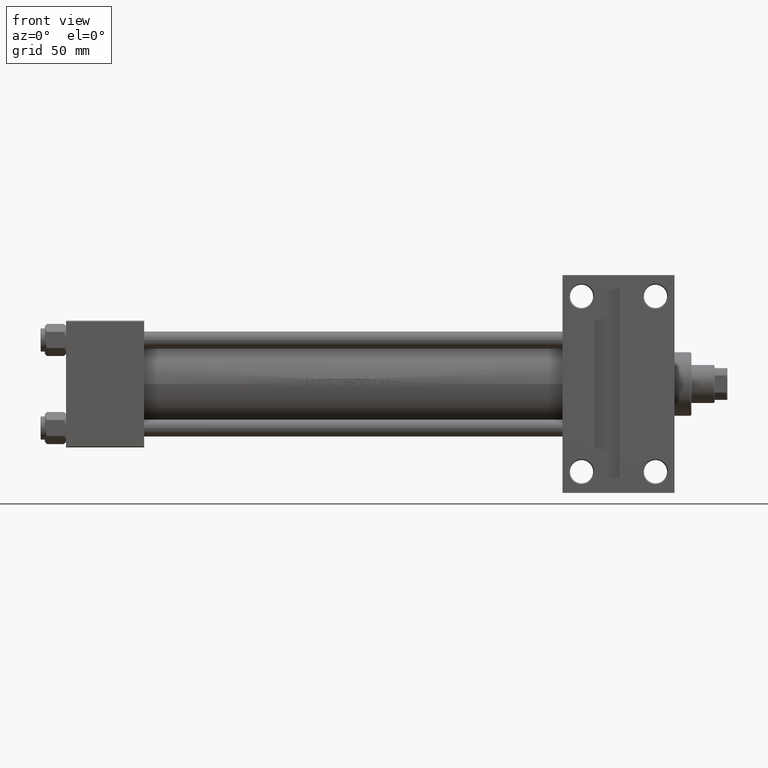
[diagram: clean part render]
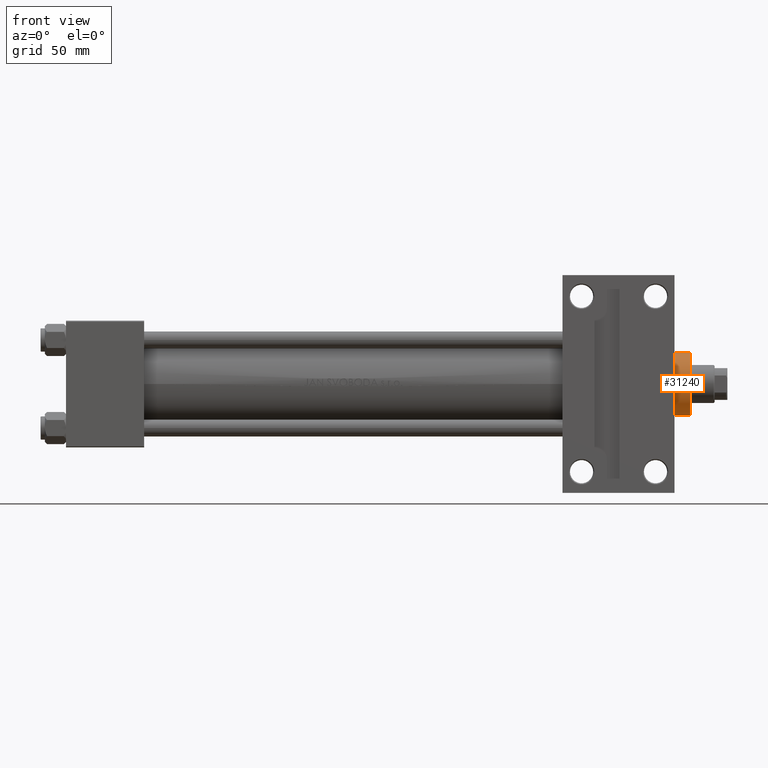
[diagram: same view with one face highlighted and labeled with its STEP entity id]
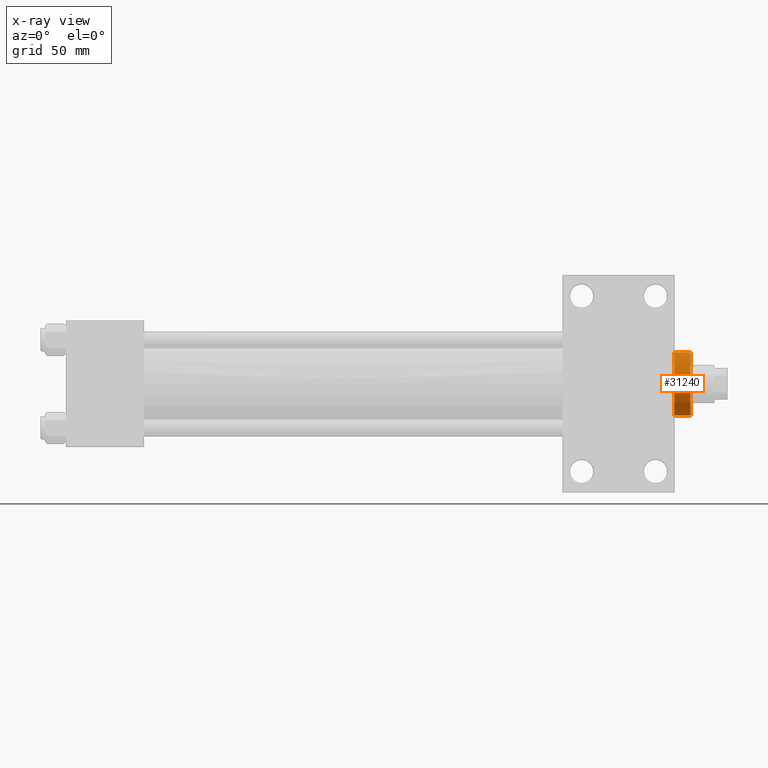
[diagram: x-ray of the same camera — body ghosted, the highlighted face saturated]
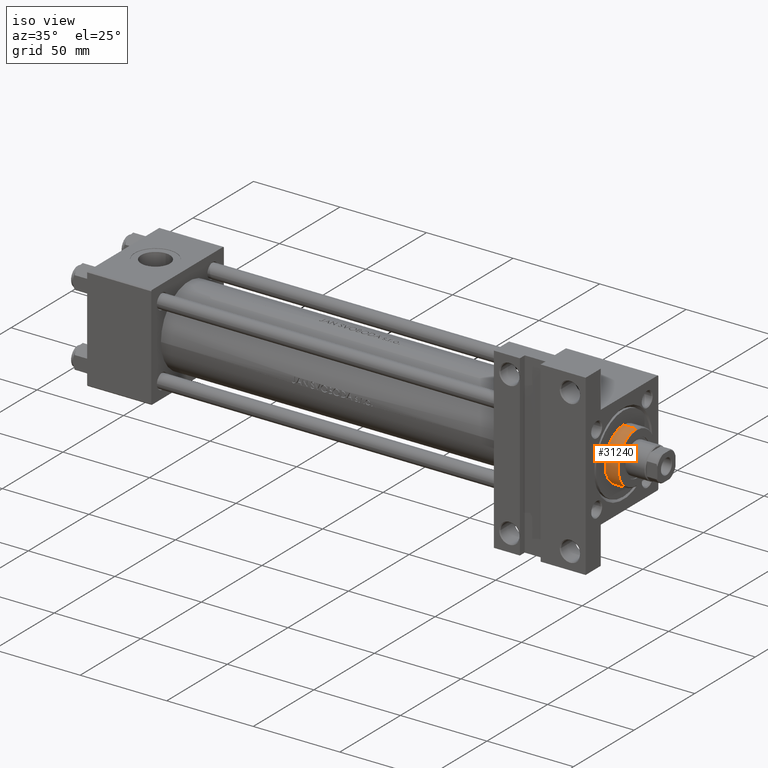
[diagram: same view with one face highlighted and labeled with its STEP entity id]
A machine part, front view. The second image highlights one B-rep face of the part: STEP entity #31240.
The next image is the same camera in x-ray: the body ghosted, the highlighted face saturated — about 0% of this face is hidden behind the body in this view.
A second angle (iso view) of the same face is appended — the face is thin or edge-on in the first view.
In plain terms, the highlighted cylindrical surface (edge-blend (fillet) strip) has radius 15 mm, axis along (-1, 0, 0).
Its self-contained STEP definition (entity closure, byte-faithful):
#4331 = EDGE_CURVE ( 'NONE', #47570, #11653, #43098, .T. ) ;
#4762 = AXIS2_PLACEMENT_3D ( 'NONE', #37168, #37401, #18897 ) ;
#5439 = ORIENTED_EDGE ( 'NONE', *, *, #33550, .T. ) ;
#8003 = VERTEX_POINT ( 'NONE', #8122 ) ;
#8122 = CARTESIAN_POINT ( 'NONE',  ( 15.00000000000000000, 1.836970198721029589E-15, 36.20000000000000284 ) ) ;
#8483 = FACE_OUTER_BOUND ( 'NONE', #44065, .T. ) ;
#9390 = ORIENTED_EDGE ( 'NONE', *, *, #13629, .F. ) ;
#10427 = DIRECTION ( 'NONE',  ( 1.000000000000000000, 0.000000000000000000, 0.000000000000000000 ) ) ;
#11653 = VERTEX_POINT ( 'NONE', #28228 ) ;
#13629 = EDGE_CURVE ( 'NONE', #45400, #11653, #47721, .T. ) ;
#13968 = DIRECTION ( 'NONE',  ( -0.000000000000000000, -0.000000000000000000, -1.000000000000000000 ) ) ;
#14129 = DIRECTION ( 'NONE',  ( 0.000000000000000000, 0.000000000000000000, 1.000000000000000000 ) ) ;
#15340 = VECTOR ( 'NONE', #13968, 1000.000000000000000 ) ;
#15587 = ORIENTED_EDGE ( 'NONE', *, *, #33414, .T. ) ;
#15876 = DIRECTION ( 'NONE',  ( -1.000000000000000000, 0.000000000000000000, 0.000000000000000000 ) ) ;
#16597 = CARTESIAN_POINT ( 'NONE',  ( 0.000000000000000000, 0.000000000000000000, 36.69999999999999574 ) ) ;
#18897 = DIRECTION ( 'NONE',  ( 1.000000000000000000, 0.000000000000000000, 0.000000000000000000 ) ) ;
#20286 = CYLINDRICAL_SURFACE ( 'NONE', #20444, 15.00000000000000000 ) ;
#20444 = AXIS2_PLACEMENT_3D ( 'NONE', #16597, #26999, #15876 ) ;
#26999 = DIRECTION ( 'NONE',  ( -0.000000000000000000, -0.000000000000000000, -1.000000000000000000 ) ) ;
#28228 = CARTESIAN_POINT ( 'NONE',  ( -15.00000000000000000, 0.000000000000000000, 28.69999999999999929 ) ) ;
#31240 = ADVANCED_FACE ( 'NONE', ( #8483 ), #20286, .T. ) ;
#31517 = LINE ( 'NONE', #46534, #42562 ) ;
#32863 = CARTESIAN_POINT ( 'NONE',  ( 0.000000000000000000, 0.000000000000000000, 28.69999999999999929 ) ) ;
#33414 = EDGE_CURVE ( 'NONE', #8003, #47570, #31517, .T. ) ;
#33550 = EDGE_CURVE ( 'NONE', #45400, #8003, #47265, .T. ) ;
#37168 = CARTESIAN_POINT ( 'NONE',  ( 0.000000000000000000, 0.000000000000000000, 36.20000000000000284 ) ) ;
#37401 = DIRECTION ( 'NONE',  ( 0.000000000000000000, 0.000000000000000000, -1.000000000000000000 ) ) ;
#40645 = CARTESIAN_POINT ( 'NONE',  ( 15.00000000000000000, 1.836970198721029589E-15, 28.69999999999999929 ) ) ;
#42562 = VECTOR ( 'NONE', #45816, 1000.000000000000000 ) ;
#43098 = CIRCLE ( 'NONE', #47022, 15.00000000000000000 ) ;
#43955 = CARTESIAN_POINT ( 'NONE',  ( -15.00000000000000000, 0.000000000000000000, 36.20000000000000284 ) ) ;
#44065 = EDGE_LOOP ( 'NONE', ( #5439, #15587, #46368, #9390 ) ) ;
#45400 = VERTEX_POINT ( 'NONE', #43955 ) ;
#45816 = DIRECTION ( 'NONE',  ( -0.000000000000000000, -0.000000000000000000, -1.000000000000000000 ) ) ;
#46368 = ORIENTED_EDGE ( 'NONE', *, *, #4331, .T. ) ;
#46534 = CARTESIAN_POINT ( 'NONE',  ( 15.00000000000000000, 1.836970198721029589E-15, 36.69999999999999574 ) ) ;
#47022 = AXIS2_PLACEMENT_3D ( 'NONE', #32863, #14129, #10427 ) ;
#47265 = CIRCLE ( 'NONE', #4762, 15.00000000000000000 ) ;
#47480 = CARTESIAN_POINT ( 'NONE',  ( -15.00000000000000000, 0.000000000000000000, 36.69999999999999574 ) ) ;
#47570 = VERTEX_POINT ( 'NONE', #40645 ) ;
#47721 = LINE ( 'NONE', #47480, #15340 ) ;